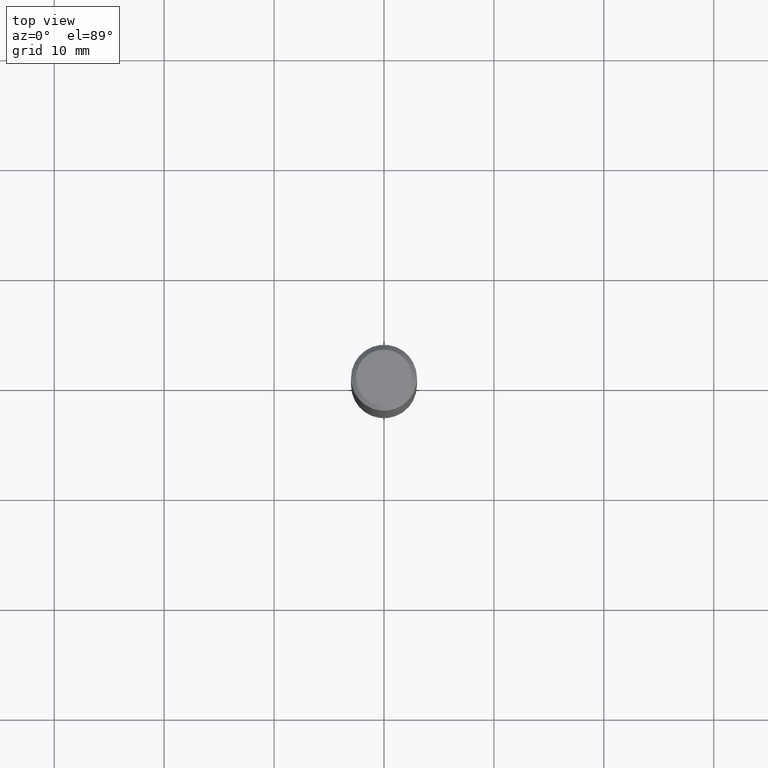
[diagram: clean part render]
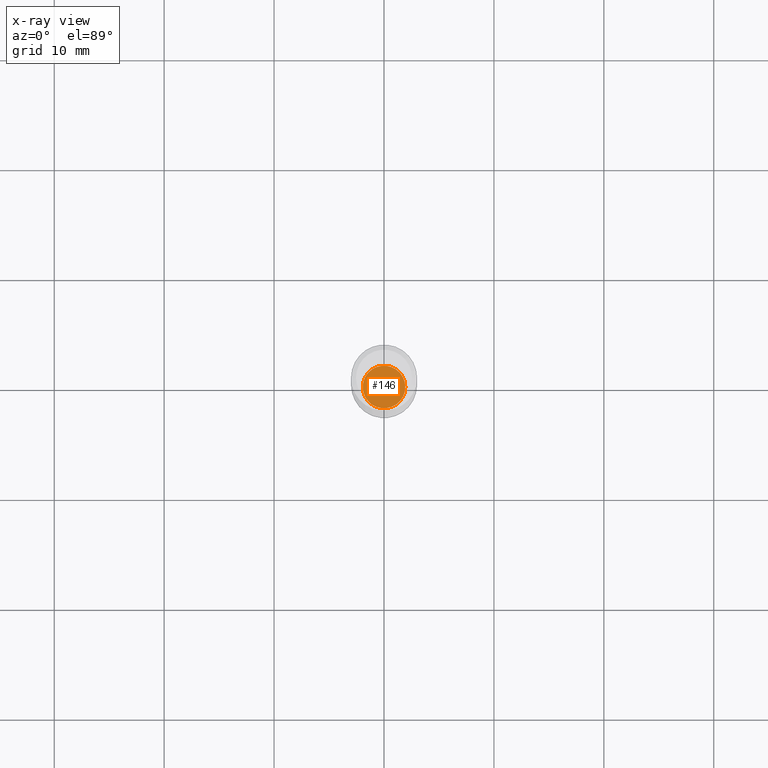
[diagram: x-ray — body ghosted, one internal face saturated and labeled with its STEP entity id]
A machine part, top view, then the same camera in x-ray: the body is ghosted and one INTERNAL B-rep face — a face not visible from any outside direction — is saturated and labeled: STEP entity #146.
In plain terms, the highlighted planar face has unit normal (-0, 0, 1).
Its self-contained STEP definition (entity closure, byte-faithful):
#5 = DIRECTION ( 'NONE',  ( 1.000000000000000000, -6.982962677686266711E-15, 0.000000000000000000 ) ) ;
#23 = DIRECTION ( 'NONE',  ( -2.438088387897960049E-29, 3.491481338843145188E-15, 1.000000000000000000 ) ) ;
#50 = AXIS2_PLACEMENT_3D ( 'NONE', #116, #420, #79 ) ;
#79 = DIRECTION ( 'NONE',  ( 1.000000000000000000, -6.982962677686266711E-15, 0.000000000000000000 ) ) ;
#101 = CIRCLE ( 'NONE', #50, 0.07624999999999999833 ) ;
#114 = AXIS2_PLACEMENT_3D ( 'NONE', #479, #23, #175 ) ;
#116 = CARTESIAN_POINT ( 'NONE',  ( 4.717553874011746679E-29, -6.735416650762311704E-15, -1.929099999999999815 ) ) ;
#141 = FACE_OUTER_BOUND ( 'NONE', #464, .T. ) ;
#146 = ADVANCED_FACE ( 'NONE', ( #141 ), #252, .F. ) ;
#160 = CARTESIAN_POINT ( 'NONE',  ( 4.717553874011746679E-29, -6.735416650762311704E-15, -1.929099999999999815 ) ) ;
#163 = DIRECTION ( 'NONE',  ( -2.445468806185136597E-29, 3.491481338843145583E-15, 1.000000000000000000 ) ) ;
#175 = DIRECTION ( 'NONE',  ( 1.000000000000000000, -6.982962677686265922E-15, 4.876176775795935793E-29 ) ) ;
#190 = VERTEX_POINT ( 'NONE', #333 ) ;
#212 = ORIENTED_EDGE ( 'NONE', *, *, #480, .F. ) ;
#224 = VERTEX_POINT ( 'NONE', #290 ) ;
#252 = PLANE ( 'NONE',  #114 ) ;
#254 = AXIS2_PLACEMENT_3D ( 'NONE', #160, #163, #5 ) ;
#290 = CARTESIAN_POINT ( 'NONE',  ( 0.07624999999999999833, -7.267867554935889225E-15, -1.929099999999999815 ) ) ;
#333 = CARTESIAN_POINT ( 'NONE',  ( -0.07624999999999999833, -6.190978587571123827E-15, -1.929099999999999815 ) ) ;
#363 = EDGE_CURVE ( 'NONE', #190, #224, #101, .T. ) ;
#389 = ORIENTED_EDGE ( 'NONE', *, *, #363, .F. ) ;
#420 = DIRECTION ( 'NONE',  ( -2.445468806185136597E-29, 3.491481338843145583E-15, 1.000000000000000000 ) ) ;
#453 = CIRCLE ( 'NONE', #254, 0.07624999999999999833 ) ;
#464 = EDGE_LOOP ( 'NONE', ( #212, #389 ) ) ;
#479 = CARTESIAN_POINT ( 'NONE',  ( 4.717553874011746679E-29, -6.735416650762311704E-15, -1.929099999999999815 ) ) ;
#480 = EDGE_CURVE ( 'NONE', #224, #190, #453, .T. ) ;